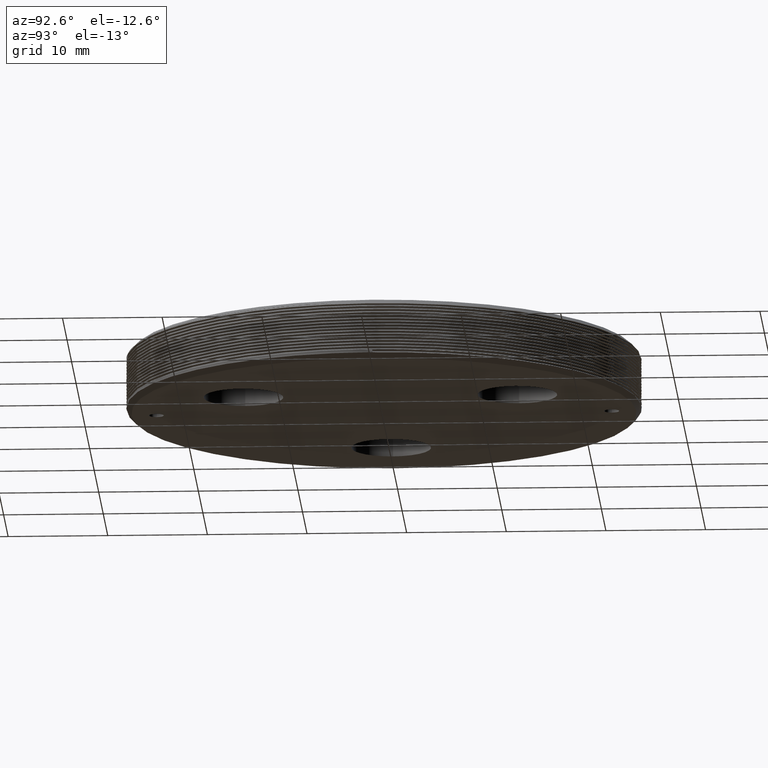
[diagram: clean part render]
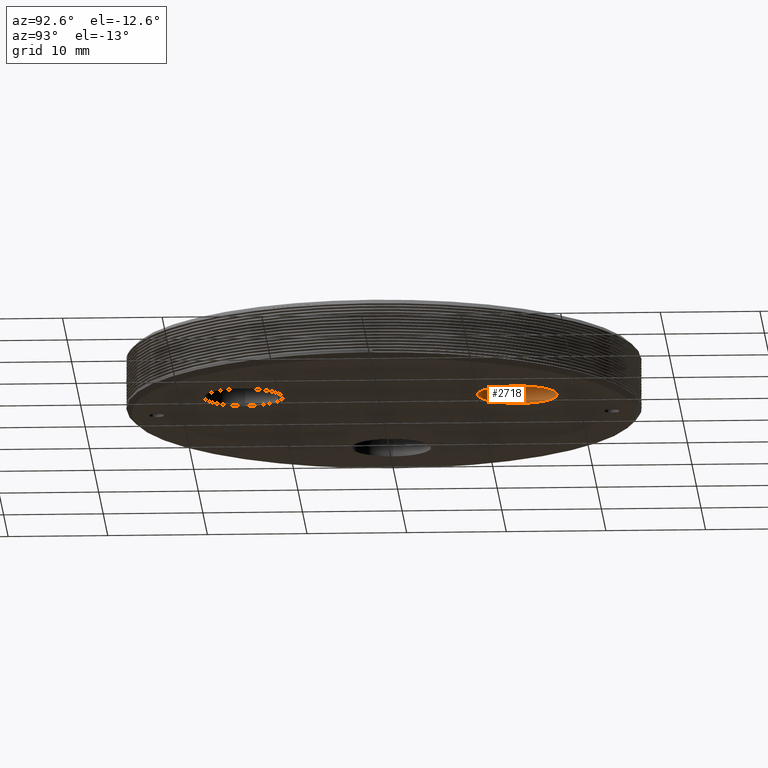
[diagram: same view with one face highlighted and labeled with its STEP entity id]
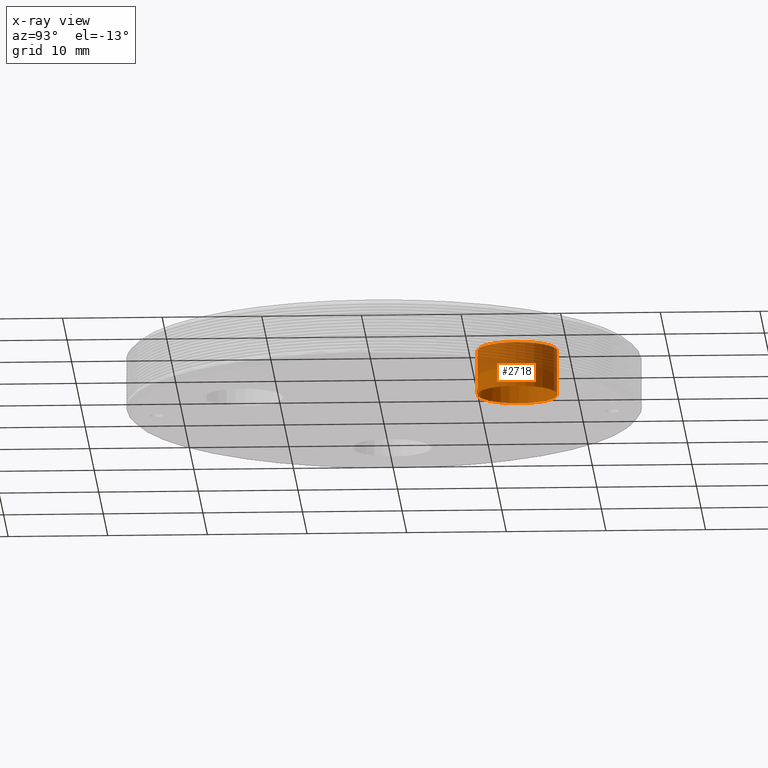
[diagram: x-ray of the same camera — body ghosted, the highlighted face saturated]
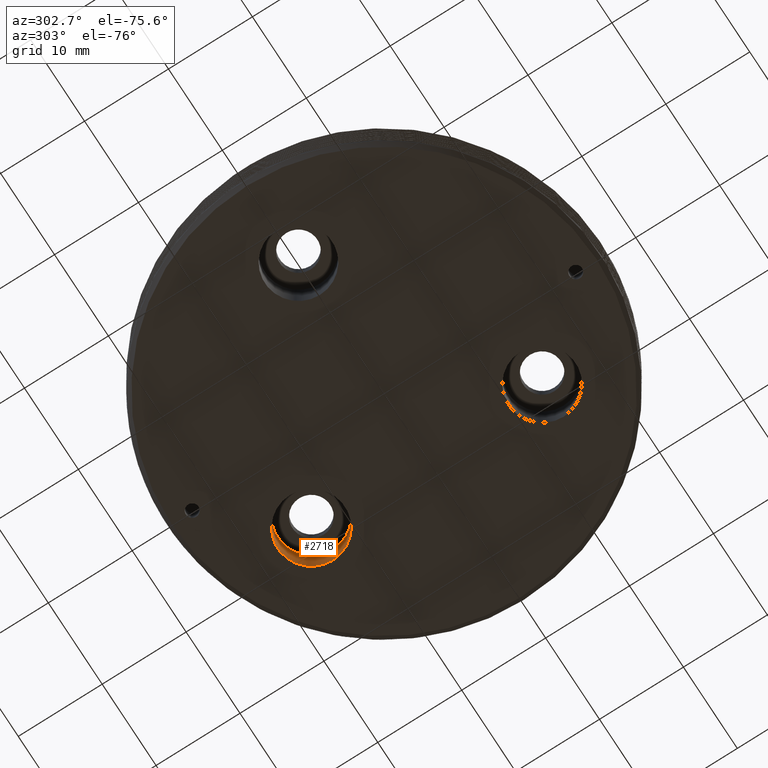
[diagram: same view with one face highlighted and labeled with its STEP entity id]
A machine part, auxiliary view. The second image highlights one B-rep face of the part: STEP entity #2718.
The next image is the same camera in x-ray: the body ghosted, the highlighted face saturated — about 45% of this face is hidden behind the body in this view.
A second angle (auxiliary view) of the same face is appended — the face is thin or edge-on in the first view.
In plain terms, the highlighted cylindrical surface (bore or boss wall) has radius 4 mm, axis along (-0, -0, -1).
Its self-contained STEP definition (entity closure, byte-faithful):
#507 = FACE_OUTER_BOUND ( 'NONE', #2868, .T. ) ;
#583 = EDGE_CURVE ( 'NONE', #2893, #2893, #3547, .T. ) ;
#749 = CARTESIAN_POINT ( 'NONE',  ( 7.937499999999873879, 13.74815328507803969, 1.499999999999999556 ) ) ;
#1260 = EDGE_CURVE ( 'NONE', #2638, #2638, #2932, .T. ) ;
#1263 = AXIS2_PLACEMENT_3D ( 'NONE', #749, #2656, #2832 ) ;
#1335 = AXIS2_PLACEMENT_3D ( 'NONE', #3511, #1662, #2335 ) ;
#1354 = ORIENTED_EDGE ( 'NONE', *, *, #1260, .F. ) ;
#1447 = DIRECTION ( 'NONE',  ( 0.000000000000000000, 0.000000000000000000, 1.000000000000000000 ) ) ;
#1662 = DIRECTION ( 'NONE',  ( -0.000000000000000000, -0.000000000000000000, -1.000000000000000000 ) ) ;
#2335 = DIRECTION ( 'NONE',  ( -1.000000000000000000, 0.000000000000000000, 0.000000000000000000 ) ) ;
#2564 = CARTESIAN_POINT ( 'NONE',  ( 3.937499999999872546, 13.74815328507803969, -3.000000000000000000 ) ) ;
#2586 = ORIENTED_EDGE ( 'NONE', *, *, #583, .F. ) ;
#2591 = DIRECTION ( 'NONE',  ( -1.000000000000000000, 0.000000000000000000, 0.000000000000000000 ) ) ;
#2638 = VERTEX_POINT ( 'NONE', #3522 ) ;
#2656 = DIRECTION ( 'NONE',  ( -0.000000000000000000, -0.000000000000000000, -1.000000000000000000 ) ) ;
#2718 = ADVANCED_FACE ( 'NONE', ( #507, #3793 ), #2899, .F. ) ;
#2832 = DIRECTION ( 'NONE',  ( -1.000000000000000000, 0.000000000000000000, 0.000000000000000000 ) ) ;
#2868 = EDGE_LOOP ( 'NONE', ( #2586 ) ) ;
#2893 = VERTEX_POINT ( 'NONE', #2564 ) ;
#2899 = CYLINDRICAL_SURFACE ( 'NONE', #1335, 4.000000000000000888 ) ;
#2932 = CIRCLE ( 'NONE', #1263, 4.000000000000000888 ) ;
#3491 = CARTESIAN_POINT ( 'NONE',  ( 7.937499999999873879, 13.74815328507803969, -3.000000000000000000 ) ) ;
#3511 = CARTESIAN_POINT ( 'NONE',  ( 7.937499999999873879, 13.74815328507803969, 1.499999999999999556 ) ) ;
#3522 = CARTESIAN_POINT ( 'NONE',  ( 3.937499999999872546, 13.74815328507803969, 1.499999999999999556 ) ) ;
#3547 = CIRCLE ( 'NONE', #3667, 4.000000000000000888 ) ;
#3667 = AXIS2_PLACEMENT_3D ( 'NONE', #3491, #1447, #2591 ) ;
#3752 = EDGE_LOOP ( 'NONE', ( #1354 ) ) ;
#3793 = FACE_OUTER_BOUND ( 'NONE', #3752, .T. ) ;